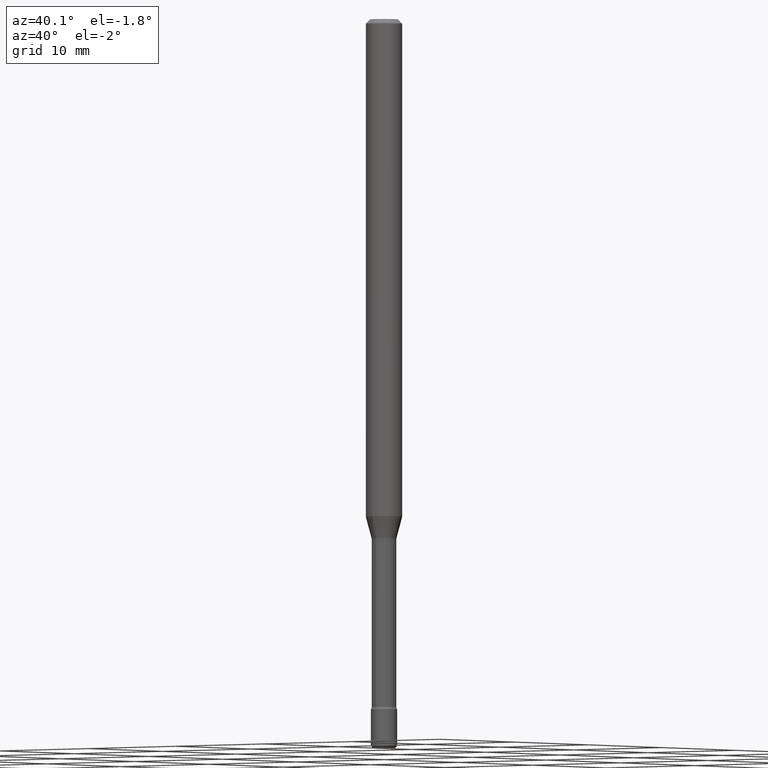
[diagram: clean part render]
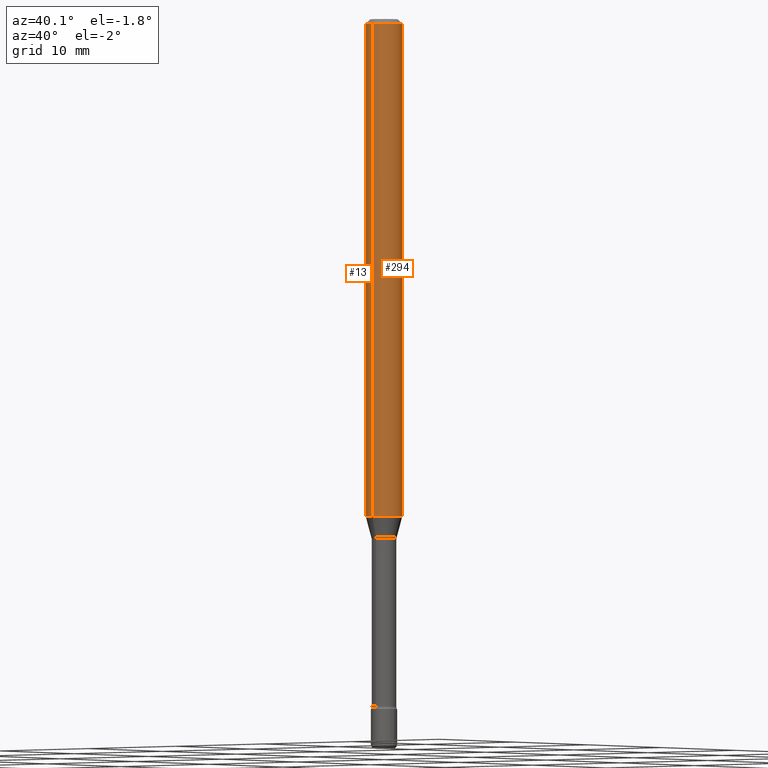
[diagram: same view with one multi-face feature highlighted, each face labeled with its STEP entity id]
A machine part, auxiliary view. The highlighted faces form ONE feature: a constant-radius fillet chain: 2 tangent blend faces with common blend radius 1.5875 mm. The faces share edges in the B-rep.
Their STEP definitions:
[1] entity #13 (Cylinder):
#1 = CARTESIAN_POINT ( 'NONE',  ( -4.364351673553912750E-16, -0.06250000000000005551, -0.01499999999999981036 ) ) ;
#13 = ADVANCED_FACE ( 'NONE', ( #154 ), #329, .T. ) ;
#40 = EDGE_LOOP ( 'NONE', ( #83, #522, #200, #194 ) ) ;
#42 = DIRECTION ( 'NONE',  ( -6.982962677686265922E-15, -1.000000000000000000, 3.491562882129242627E-15 ) ) ;
#60 = DIRECTION ( 'NONE',  ( -6.982962677686265922E-15, -1.000000000000000000, 4.370956789862821150E-15 ) ) ;
#69 = VECTOR ( 'NONE', #253, 39.37007874015748143 ) ;
#83 = ORIENTED_EDGE ( 'NONE', *, *, #552, .F. ) ;
#95 = VERTEX_POINT ( 'NONE', #172 ) ;
#98 = CARTESIAN_POINT ( 'NONE',  ( 3.668117797219197392E-31, -5.237344323193873357E-17, -0.01500000000000002720 ) ) ;
#102 = DIRECTION ( 'NONE',  ( -2.445411864812793917E-29, 3.491562882129241838E-15, 1.000000000000000000 ) ) ;
#107 = DIRECTION ( 'NONE',  ( -2.445411864812793917E-29, 3.491562882129241838E-15, 1.000000000000000000 ) ) ;
#130 = DIRECTION ( 'NONE',  ( -2.445411864812793917E-29, 3.491562882129241838E-15, 1.000000000000000000 ) ) ;
#154 = FACE_OUTER_BOUND ( 'NONE', #40, .T. ) ;
#172 = CARTESIAN_POINT ( 'NONE',  ( 4.440892098501044258E-16, 0.06249999999999408112, -1.704612573687109389 ) ) ;
#194 = ORIENTED_EDGE ( 'NONE', *, *, #438, .F. ) ;
#200 = ORIENTED_EDGE ( 'NONE', *, *, #528, .T. ) ;
#218 = CIRCLE ( 'NONE', #479, 0.06250000000000000000 ) ;
#227 = DIRECTION ( 'NONE',  ( -6.982962677686265922E-15, -1.000000000000000000, 3.483106191921935554E-15 ) ) ;
#231 = EDGE_CURVE ( 'NONE', #95, #402, #542, .T. ) ;
#236 = CARTESIAN_POINT ( 'NONE',  ( 4.440892098501046230E-16, 0.06249999999999995143, -0.01500000000000024578 ) ) ;
#253 = DIRECTION ( 'NONE',  ( -2.445411864812793917E-29, 3.491562882129241838E-15, 1.000000000000000000 ) ) ;
#302 = CARTESIAN_POINT ( 'NONE',  ( 4.440892098500625669E-16, 0.06250000000000000000, 2.598507187581684484E-16 ) ) ;
#329 = CYLINDRICAL_SURFACE ( 'NONE', #379, 0.06250000000000000000 ) ;
#332 = DIRECTION ( 'NONE',  ( -2.445411864812793917E-29, 3.491562882129241838E-15, 1.000000000000000000 ) ) ;
#350 = LINE ( 'NONE', #302, #69 ) ;
#379 = AXIS2_PLACEMENT_3D ( 'NONE', #494, #107, #42 ) ;
#381 = AXIS2_PLACEMENT_3D ( 'NONE', #424, #332, #60 ) ;
#402 = VERTEX_POINT ( 'NONE', #410 ) ;
#410 = CARTESIAN_POINT ( 'NONE',  ( -4.364351673553497119E-16, -0.06250000000000591194, -1.704612573687108945 ) ) ;
#424 = CARTESIAN_POINT ( 'NONE',  ( 4.168479812603529288E-29, -5.951761990696707691E-15, -1.704612573687109167 ) ) ;
#431 = CARTESIAN_POINT ( 'NONE',  ( -4.364351673553916201E-16, -0.06250000000000000000, 6.962960790243237274E-16 ) ) ;
#437 = VECTOR ( 'NONE', #130, 39.37007874015748143 ) ;
#438 = EDGE_CURVE ( 'NONE', #443, #478, #218, .T. ) ;
#443 = VERTEX_POINT ( 'NONE', #236 ) ;
#478 = VERTEX_POINT ( 'NONE', #1 ) ;
#479 = AXIS2_PLACEMENT_3D ( 'NONE', #98, #102, #227 ) ;
#494 = CARTESIAN_POINT ( 'NONE',  ( -1.169113584055446105E-44, 1.669184350826100908E-30, 4.780733988912460139E-16 ) ) ;
#512 = LINE ( 'NONE', #431, #437 ) ;
#522 = ORIENTED_EDGE ( 'NONE', *, *, #231, .T. ) ;
#528 = EDGE_CURVE ( 'NONE', #402, #478, #512, .T. ) ;
#542 = CIRCLE ( 'NONE', #381, 0.06250000000000000000 ) ;
#552 = EDGE_CURVE ( 'NONE', #95, #443, #350, .T. ) ;
[2] entity #294 (Cylinder):
#1 = CARTESIAN_POINT ( 'NONE',  ( -4.364351673553912750E-16, -0.06250000000000005551, -0.01499999999999981036 ) ) ;
#17 = DIRECTION ( 'NONE',  ( -2.445411864812793917E-29, 3.491562882129241838E-15, 1.000000000000000000 ) ) ;
#24 = DIRECTION ( 'NONE',  ( -6.982962677686265922E-15, -1.000000000000000000, 3.491562882129242627E-15 ) ) ;
#33 = DIRECTION ( 'NONE',  ( -6.982962677686265922E-15, -1.000000000000000000, 4.370956789862821150E-15 ) ) ;
#34 = DIRECTION ( 'NONE',  ( -6.982962677686265922E-15, -1.000000000000000000, 3.483106191921935554E-15 ) ) ;
#52 = EDGE_CURVE ( 'NONE', #402, #95, #295, .T. ) ;
#67 = FACE_OUTER_BOUND ( 'NONE', #279, .T. ) ;
#69 = VECTOR ( 'NONE', #253, 39.37007874015748143 ) ;
#84 = DIRECTION ( 'NONE',  ( -2.445411864812793917E-29, 3.491562882129241838E-15, 1.000000000000000000 ) ) ;
#85 = CARTESIAN_POINT ( 'NONE',  ( 3.668117797219197392E-31, -5.237344323193873357E-17, -0.01500000000000002720 ) ) ;
#95 = VERTEX_POINT ( 'NONE', #172 ) ;
#130 = DIRECTION ( 'NONE',  ( -2.445411864812793917E-29, 3.491562882129241838E-15, 1.000000000000000000 ) ) ;
#143 = ORIENTED_EDGE ( 'NONE', *, *, #52, .T. ) ;
#172 = CARTESIAN_POINT ( 'NONE',  ( 4.440892098501044258E-16, 0.06249999999999408112, -1.704612573687109389 ) ) ;
#178 = ORIENTED_EDGE ( 'NONE', *, *, #528, .F. ) ;
#181 = ORIENTED_EDGE ( 'NONE', *, *, #304, .F. ) ;
#211 = AXIS2_PLACEMENT_3D ( 'NONE', #85, #219, #34 ) ;
#212 = ORIENTED_EDGE ( 'NONE', *, *, #552, .T. ) ;
#219 = DIRECTION ( 'NONE',  ( -2.445411864812793917E-29, 3.491562882129241838E-15, 1.000000000000000000 ) ) ;
#220 = AXIS2_PLACEMENT_3D ( 'NONE', #313, #84, #33 ) ;
#236 = CARTESIAN_POINT ( 'NONE',  ( 4.440892098501046230E-16, 0.06249999999999995143, -0.01500000000000024578 ) ) ;
#240 = CYLINDRICAL_SURFACE ( 'NONE', #446, 0.06250000000000000000 ) ;
#253 = DIRECTION ( 'NONE',  ( -2.445411864812793917E-29, 3.491562882129241838E-15, 1.000000000000000000 ) ) ;
#279 = EDGE_LOOP ( 'NONE', ( #143, #212, #181, #178 ) ) ;
#294 = ADVANCED_FACE ( 'NONE', ( #67 ), #240, .T. ) ;
#295 = CIRCLE ( 'NONE', #220, 0.06250000000000000000 ) ;
#302 = CARTESIAN_POINT ( 'NONE',  ( 4.440892098500625669E-16, 0.06250000000000000000, 2.598507187581684484E-16 ) ) ;
#304 = EDGE_CURVE ( 'NONE', #478, #443, #406, .T. ) ;
#313 = CARTESIAN_POINT ( 'NONE',  ( 4.168479812603529288E-29, -5.951761990696707691E-15, -1.704612573687109167 ) ) ;
#350 = LINE ( 'NONE', #302, #69 ) ;
#402 = VERTEX_POINT ( 'NONE', #410 ) ;
#406 = CIRCLE ( 'NONE', #211, 0.06250000000000000000 ) ;
#410 = CARTESIAN_POINT ( 'NONE',  ( -4.364351673553497119E-16, -0.06250000000000591194, -1.704612573687108945 ) ) ;
#417 = CARTESIAN_POINT ( 'NONE',  ( -1.169113584055446105E-44, 1.669184350826100908E-30, 4.780733988912460139E-16 ) ) ;
#431 = CARTESIAN_POINT ( 'NONE',  ( -4.364351673553916201E-16, -0.06250000000000000000, 6.962960790243237274E-16 ) ) ;
#437 = VECTOR ( 'NONE', #130, 39.37007874015748143 ) ;
#443 = VERTEX_POINT ( 'NONE', #236 ) ;
#446 = AXIS2_PLACEMENT_3D ( 'NONE', #417, #17, #24 ) ;
#478 = VERTEX_POINT ( 'NONE', #1 ) ;
#512 = LINE ( 'NONE', #431, #437 ) ;
#528 = EDGE_CURVE ( 'NONE', #402, #478, #512, .T. ) ;
#552 = EDGE_CURVE ( 'NONE', #95, #443, #350, .T. ) ;